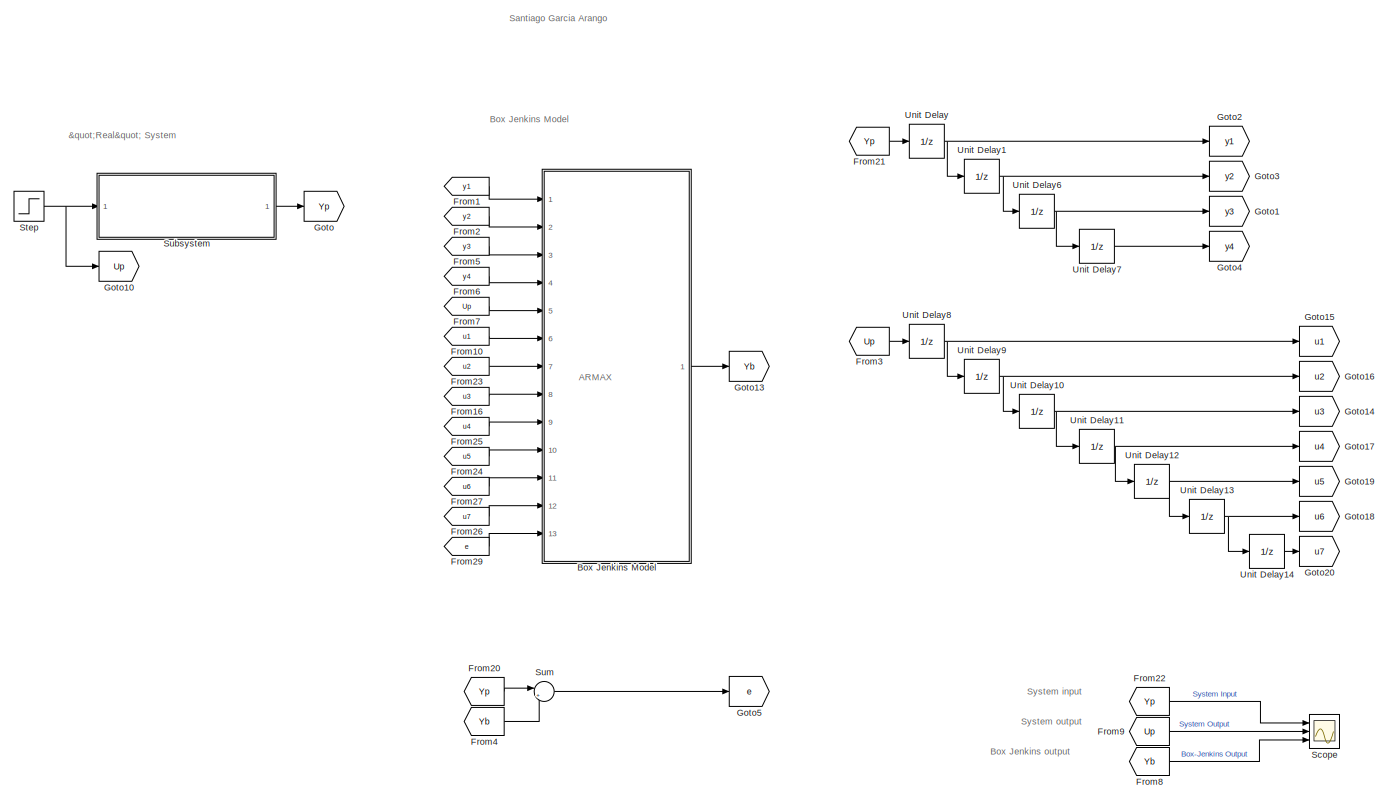
[diagram: root canvas - part 1/1, most of the canvas]
MODEL slx_2ed8bc9d7886
KIND model
CONFIG AbsTol = auto
CONFIG EnableMultiTasking = off
CONFIG FixedStep = 0.001
CONFIG MaxStep = auto
CONFIG MinStep = auto
CONFIG RelTol = 1e-3
CONFIG SampleTimeConstraint = Unconstrained
CONFIG Solver = FixedStepAuto
CONFIG SolverName = FixedStepAuto
CONFIG StartTime = 0.0
CONFIG StopTime = 10
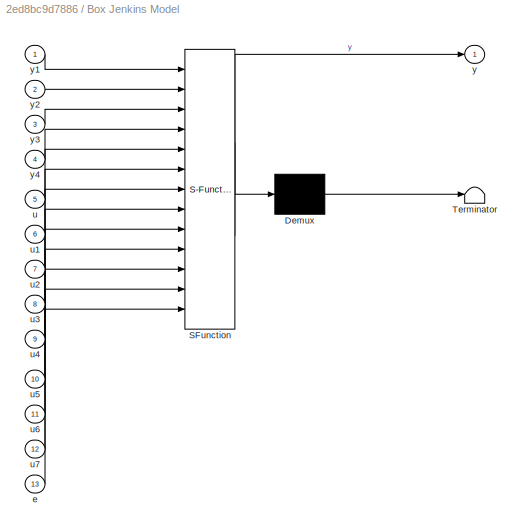
BLOCK [SubSystem] Box Jenkins Model
  ErrorFcn = Stateflow.Translate.translate
  PermitHierarchicalResolution = ExplicitOnly
  Ports = [13, 1]
  RequestExecContextInheritance = off
  SFBlockType = MATLAB Function
  TreatAsAtomicUnit = on
BLOCK [Demux] Box Jenkins Model/ Demux 
  Outputs = 1
  Ports = [1, 1]
BLOCK [S-Function] Box Jenkins Model/ SFunction 
  EnableBusSupport = on
  FunctionName = sf_sfun
  PortCounts = [13 2]
  Ports = [13, 2]
  SFcnIsStateOwnerBlock = off
  SFunctionDeploymentMode = off
  Tag = Stateflow S-Function 2
BLOCK [Terminator] Box Jenkins Model/ Terminator 
BLOCK [Inport] Box Jenkins Model/e
  Port = 13
BLOCK [Inport] Box Jenkins Model/u
  Port = 5
BLOCK [Inport] Box Jenkins Model/u1
  Port = 6
BLOCK [Inport] Box Jenkins Model/u2
  Port = 7
BLOCK [Inport] Box Jenkins Model/u3
  Port = 8
BLOCK [Inport] Box Jenkins Model/u4
  Port = 9
BLOCK [Inport] Box Jenkins Model/u5
  Port = 10
BLOCK [Inport] Box Jenkins Model/u6
  Port = 11
BLOCK [Inport] Box Jenkins Model/u7
  Port = 12
BLOCK [Outport] Box Jenkins Model/y
BLOCK [Inport] Box Jenkins Model/y1
BLOCK [Inport] Box Jenkins Model/y2
  Port = 2
BLOCK [Inport] Box Jenkins Model/y3
  Port = 3
BLOCK [Inport] Box Jenkins Model/y4
  Port = 4
BLOCK [From] From1
  GotoTag = y1
BLOCK [From] From10
  GotoTag = u1
BLOCK [From] From16
  GotoTag = u3
BLOCK [From] From2
  GotoTag = y2
BLOCK [From] From20
  GotoTag = Yp
BLOCK [From] From21
  GotoTag = Yp
BLOCK [From] From22
  GotoTag = Yp
BLOCK [From] From23
  GotoTag = u2
BLOCK [From] From24
  GotoTag = u5
BLOCK [From] From25
  GotoTag = u4
BLOCK [From] From26
  GotoTag = u7
BLOCK [From] From27
  GotoTag = u6
BLOCK [From] From29
  GotoTag = e
BLOCK [From] From3
  GotoTag = Up
BLOCK [From] From4
  GotoTag = Yb
BLOCK [From] From5
  GotoTag = y3
BLOCK [From] From6
  GotoTag = y4
BLOCK [From] From7
  GotoTag = Up
BLOCK [From] From8
  GotoTag = Yb
BLOCK [From] From9
  GotoTag = Up
BLOCK [Goto] Goto
  GotoTag = Yp
BLOCK [Goto] Goto1
  GotoTag = y3
BLOCK [Goto] Goto10
  GotoTag = Up
BLOCK [Goto] Goto13
  GotoTag = Yb
BLOCK [Goto] Goto14
  GotoTag = u3
BLOCK [Goto] Goto15
  GotoTag = u1
BLOCK [Goto] Goto16
  GotoTag = u2
BLOCK [Goto] Goto17
  GotoTag = u4
BLOCK [Goto] Goto18
  GotoTag = u6
BLOCK [Goto] Goto19
  GotoTag = u5
BLOCK [Goto] Goto2
  GotoTag = y1
BLOCK [Goto] Goto20
  GotoTag = u7
BLOCK [Goto] Goto3
  GotoTag = y2
BLOCK [Goto] Goto4
  GotoTag = y4
BLOCK [Goto] Goto5
  GotoTag = e
BLOCK [Scope] Scope
  Floating = off
  NumInputPorts = 3
  Ports = [3]
  ScopeSpecificationString = Simulink.scopes.TimeScopeBlockCfg('CurrentConfiguration', extmgr.ConfigurationSet(extmgr.Configuration('Core','General UI',true),extmgr.Configuration('Core','Source UI',true),extmgr.Configuration('Sources','WiredSimulink',true,'DataLoggingVariableName','ScopeData1'),extmgr.Configuration('Visuals','Time Domain',true,'SerializedDisplays',{struct('MinYLimReal','-0.3897','MaxYLimReal','1.15441','YLabe...<+1506ch>
BLOCK [Step] Step
  After = 0
  Before = 1
  SampleTime = 0.001
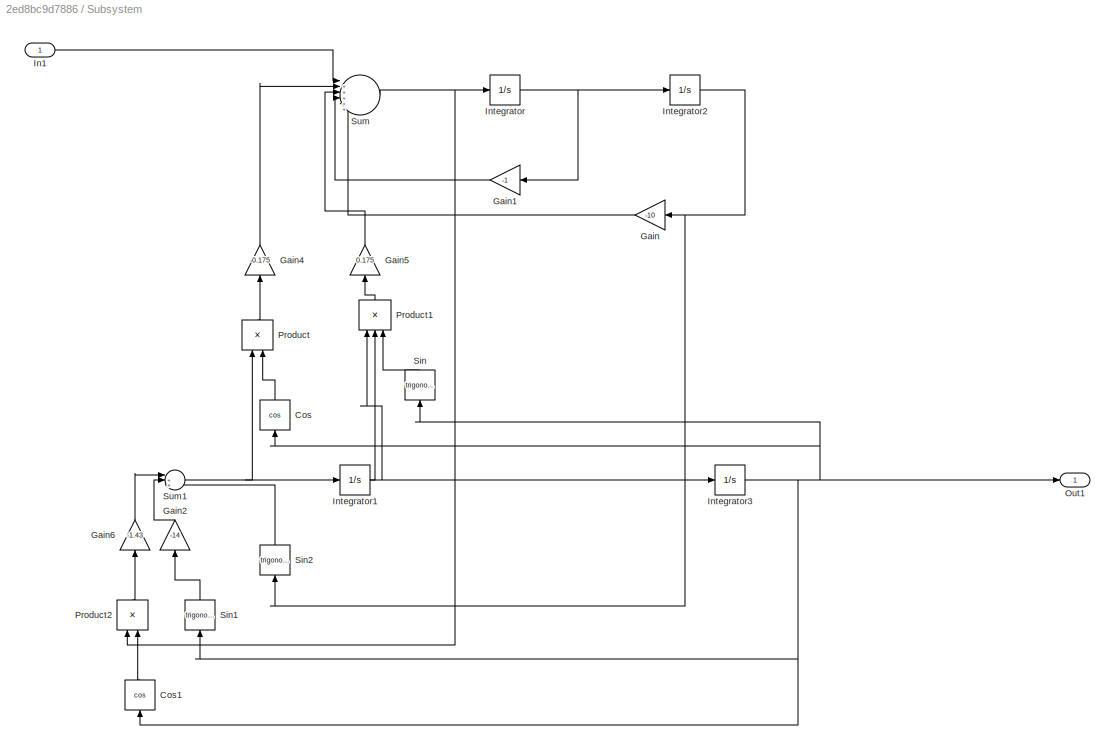
BLOCK [SubSystem] Subsystem
  Ports = [1, 1]
  RequestExecContextInheritance = off
BLOCK [Trigonometry] Subsystem/Cos
  NameLocation = right
  Operator = cos
  Ports = [1, 1]
BLOCK [Trigonometry] Subsystem/Cos1
  NameLocation = right
  Operator = cos
  Ports = [1, 1]
BLOCK [Gain] Subsystem/Gain
  Gain = -10
  NameLocation = top
BLOCK [Gain] Subsystem/Gain1
  Gain = -1
  NameLocation = top
BLOCK [Gain] Subsystem/Gain2
  Gain = -14
  NameLocation = right
BLOCK [Gain] Subsystem/Gain4
  Gain = -0.175
  NameLocation = right
BLOCK [Gain] Subsystem/Gain5
  Gain = 0.175
  NameLocation = right
BLOCK [Gain] Subsystem/Gain6
  Gain = -1.43
  NameLocation = right
BLOCK [Inport] Subsystem/In1
BLOCK [Integrator] Subsystem/Integrator
  Ports = [1, 1]
BLOCK [Integrator] Subsystem/Integrator1
  Ports = [1, 1]
BLOCK [Integrator] Subsystem/Integrator2
  Ports = [1, 1]
BLOCK [Integrator] Subsystem/Integrator3
  Ports = [1, 1]
BLOCK [Outport] Subsystem/Out1
  VectorParamsAs1DForOutWhenUnconnected = off
BLOCK [Product] Subsystem/Product
  NameLocation = right
  Ports = [2, 1]
BLOCK [Product] Subsystem/Product1
  Inputs = 3
  NameLocation = right
  Ports = [3, 1]
BLOCK [Product] Subsystem/Product2
  NameLocation = right
  Ports = [2, 1]
BLOCK [Trigonometry] Subsystem/Sin
  NameLocation = right
  Ports = [1, 1]
BLOCK [Trigonometry] Subsystem/Sin1
  NameLocation = right
  Ports = [1, 1]
BLOCK [Trigonometry] Subsystem/Sin2
  NameLocation = right
  Ports = [1, 1]
BLOCK [Sum] Subsystem/Sum
  Inputs = |+++++-
  Ports = [6, 1]
BLOCK [Sum] Subsystem/Sum1
  Inputs = |++-
  Ports = [3, 1]
BLOCK [Sum] Sum
  Inputs = |+-
  Ports = [2, 1]
BLOCK [UnitDelay] Unit Delay
  HasFrameUpgradeWarning = on
  SampleTime = -1
BLOCK [UnitDelay] Unit Delay1
  HasFrameUpgradeWarning = on
  SampleTime = -1
BLOCK [UnitDelay] Unit Delay10
  HasFrameUpgradeWarning = on
  SampleTime = -1
BLOCK [UnitDelay] Unit Delay11
  HasFrameUpgradeWarning = on
  SampleTime = -1
BLOCK [UnitDelay] Unit Delay12
  HasFrameUpgradeWarning = on
  SampleTime = -1
BLOCK [UnitDelay] Unit Delay13
  HasFrameUpgradeWarning = on
  SampleTime = -1
BLOCK [UnitDelay] Unit Delay14
  HasFrameUpgradeWarning = on
  SampleTime = -1
BLOCK [UnitDelay] Unit Delay6
  HasFrameUpgradeWarning = on
  SampleTime = -1
BLOCK [UnitDelay] Unit Delay7
  HasFrameUpgradeWarning = on
  SampleTime = -1
BLOCK [UnitDelay] Unit Delay8
  HasFrameUpgradeWarning = on
  SampleTime = -1
BLOCK [UnitDelay] Unit Delay9
  HasFrameUpgradeWarning = on
  SampleTime = -1
ANNOTATION (root): Box Jenkins output
ANNOTATION (root): System input
ANNOTATION (root): System output
ANNOTATION (root): "Real" System
ANNOTATION (root): Box Jenkins Model
ANNOTATION (root): Santiago Garcia Arango
ANNOTATION (root): ARMAX
LINE Box Jenkins Model:1 -> Goto13:1
LINE From10:1 -> Box Jenkins Model:6
LINE From16:1 -> Box Jenkins Model:8
LINE From1:1 -> Box Jenkins Model:1
LINE From20:1 -> Sum:1
LINE From21:1 -> Unit Delay:1
LINE From22:1 -> Scope:1
LINE From23:1 -> Box Jenkins Model:7
LINE From24:1 -> Box Jenkins Model:10
LINE From25:1 -> Box Jenkins Model:9
LINE From26:1 -> Box Jenkins Model:12
LINE From27:1 -> Box Jenkins Model:11
LINE From29:1 -> Box Jenkins Model:13
LINE From2:1 -> Box Jenkins Model:2
LINE From3:1 -> Unit Delay8:1
LINE From4:1 -> Sum:2
LINE From5:1 -> Box Jenkins Model:3
LINE From6:1 -> Box Jenkins Model:4
LINE From7:1 -> Box Jenkins Model:5
LINE From8:1 -> Scope:3
LINE From9:1 -> Scope:2
NET Step:1 -> Goto10:1, Subsystem:1
LINE Subsystem/Cos1:1 -> Subsystem/Product2:2
LINE Subsystem/Cos:1 -> Subsystem/Product:2
LINE Subsystem/Gain1:1 -> Subsystem/Sum:4
LINE Subsystem/Gain2:1 -> Subsystem/Sum1:2
LINE Subsystem/Gain4:1 -> Subsystem/Sum:2
LINE Subsystem/Gain5:1 -> Subsystem/Sum:3
LINE Subsystem/Gain6:1 -> Subsystem/Sum1:1
LINE Subsystem/Gain:1 -> Subsystem/Sum:5
LINE Subsystem/In1:1 -> Subsystem/Sum:1
NET Subsystem/Integrator1:1 -> Subsystem/Integrator3:1, Subsystem/Product1:1, Subsystem/Product1:2
NET Subsystem/Integrator2:1 -> Subsystem/Gain:1, Subsystem/Sin2:1
NET Subsystem/Integrator3:1 -> Subsystem/Cos1:1, Subsystem/Cos:1, Subsystem/Out1:1, Subsystem/Sin1:1, Subsystem/Sin:1
NET Subsystem/Integrator:1 -> Subsystem/Gain1:1, Subsystem/Integrator2:1
LINE Subsystem/Product1:1 -> Subsystem/Gain5:1
LINE Subsystem/Product2:1 -> Subsystem/Gain6:1
LINE Subsystem/Product:1 -> Subsystem/Gain4:1
LINE Subsystem/Sin1:1 -> Subsystem/Gain2:1
LINE Subsystem/Sin2:1 -> Subsystem/Sum1:3
LINE Subsystem/Sin:1 -> Subsystem/Product1:3
NET Subsystem/Sum1:1 -> Subsystem/Integrator1:1, Subsystem/Product:1
NET Subsystem/Sum:1 -> Subsystem/Integrator:1, Subsystem/Product2:1
LINE Subsystem:1 -> Goto:1
LINE Sum:1 -> Goto5:1
NET Unit Delay10:1 -> Goto14:1, Unit Delay11:1
NET Unit Delay11:1 -> Goto17:1, Unit Delay12:1
NET Unit Delay12:1 -> Goto19:1, Unit Delay13:1
NET Unit Delay13:1 -> Goto18:1, Unit Delay14:1
LINE Unit Delay14:1 -> Goto20:1
NET Unit Delay1:1 -> Goto3:1, Unit Delay6:1
NET Unit Delay6:1 -> Goto1:1, Unit Delay7:1
LINE Unit Delay7:1 -> Goto4:1
NET Unit Delay8:1 -> Goto15:1, Unit Delay9:1
NET Unit Delay9:1 -> Goto16:1, Unit Delay10:1
NET Unit Delay:1 -> Goto2:1, Unit Delay1:1
note: NET lines group one-source signal fan-out (src -> all destinations, sorted); 1:1 wires keep LINE
CHART Box Jenkins Model states=1 transitions=1
  STATE_LABEL 'eML_blk_kernel()'
  STATE_LABEL 'SCRIPT:\nfunction y = fcn(y1,y2,y3,y4,u,u1,u2,u3,u4,u5,u6,u7,e)\n\na1 = 3.999;\na2 = -5.996;\na3 = 3.996;\na4 = -0.9987;\nb0 = -1.14e-12;\nb1 = 1.754e-15;\nb2 = 1.851e-15;\nb3 = -9.474e-07;\nb4 = 9.479e-07;\nb5 = 9.465e-07;\nb6 = -9.47e-07;\nb7 = 1.623e-14;\n\ny = a1*y1+a2*y2+a3*y3+a4*y4+b0*u+b1*u1+b2*u2+b3*u3+b4*u4+b5*u5+b6*u6+b7*u7+e;\n'
CHART  states=0 transitions=0
